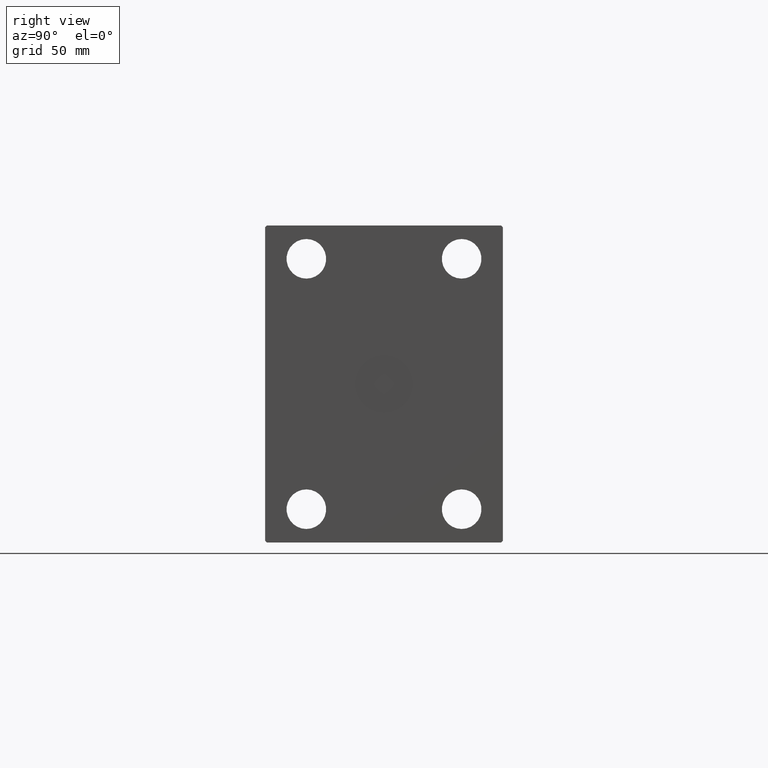
[diagram: clean part render]
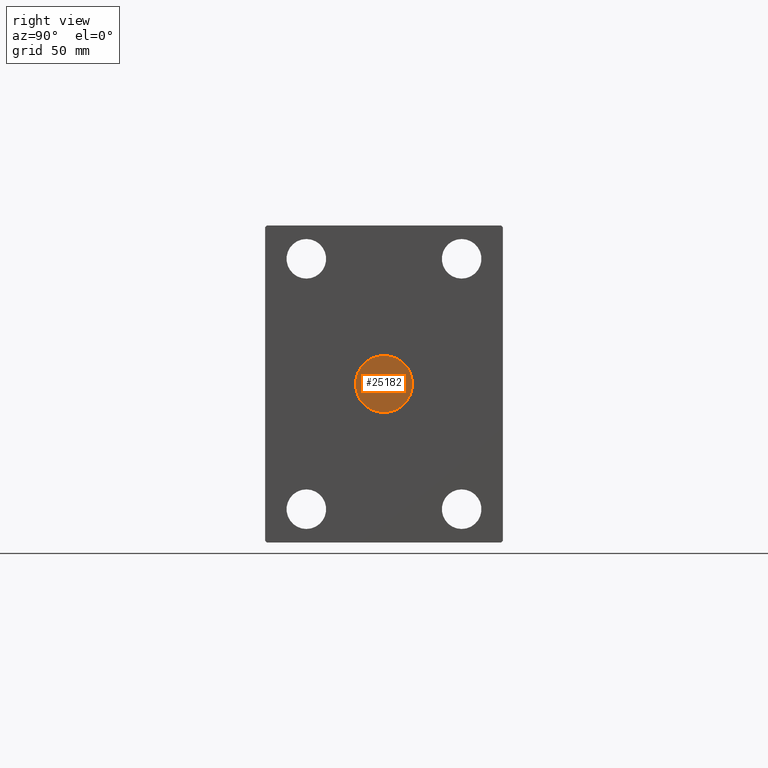
[diagram: same view with one face highlighted and labeled with its STEP entity id]
A machine part, right view. The second image highlights one B-rep face of the part: STEP entity #25182.
In plain terms, the highlighted planar face has unit normal (1, 0, 0).
Its self-contained STEP definition (entity closure, byte-faithful):
#959 = DIRECTION ( 'NONE',  ( 0.000000000000000000, 0.000000000000000000, -1.000000000000000000 ) ) ;
#2338 = VERTEX_POINT ( 'NONE', #19917 ) ;
#4176 = FACE_OUTER_BOUND ( 'NONE', #19878, .T. ) ;
#4647 = CARTESIAN_POINT ( 'NONE',  ( 387.8000000000000114, 2.204364238465235428E-15, 18.00000000000000000 ) ) ;
#5242 = CARTESIAN_POINT ( 'NONE',  ( 387.8000000000000114, 0.000000000000000000, 0.000000000000000000 ) ) ;
#5320 = AXIS2_PLACEMENT_3D ( 'NONE', #37751, #37112, #7659 ) ;
#6497 = ORIENTED_EDGE ( 'NONE', *, *, #19361, .T. ) ;
#7387 = DIRECTION ( 'NONE',  ( 1.000000000000000000, 0.000000000000000000, 0.000000000000000000 ) ) ;
#7659 = DIRECTION ( 'NONE',  ( 0.000000000000000000, 0.000000000000000000, -1.000000000000000000 ) ) ;
#10616 = PLANE ( 'NONE',  #27382 ) ;
#13200 = CARTESIAN_POINT ( 'NONE',  ( 387.8000000000000114, 0.000000000000000000, 0.000000000000000000 ) ) ;
#15000 = AXIS2_PLACEMENT_3D ( 'NONE', #5242, #35325, #34894 ) ;
#19361 = EDGE_CURVE ( 'NONE', #22663, #2338, #36874, .T. ) ;
#19878 = EDGE_LOOP ( 'NONE', ( #20892, #6497 ) ) ;
#19917 = CARTESIAN_POINT ( 'NONE',  ( 387.8000000000000114, 0.000000000000000000, -18.00000000000000000 ) ) ;
#20892 = ORIENTED_EDGE ( 'NONE', *, *, #28030, .T. ) ;
#22554 = CIRCLE ( 'NONE', #15000, 18.00000000000000000 ) ;
#22663 = VERTEX_POINT ( 'NONE', #4647 ) ;
#25182 = ADVANCED_FACE ( 'NONE', ( #4176 ), #10616, .T. ) ;
#27382 = AXIS2_PLACEMENT_3D ( 'NONE', #13200, #7387, #959 ) ;
#28030 = EDGE_CURVE ( 'NONE', #2338, #22663, #22554, .T. ) ;
#34894 = DIRECTION ( 'NONE',  ( 0.000000000000000000, 0.000000000000000000, -1.000000000000000000 ) ) ;
#35325 = DIRECTION ( 'NONE',  ( 1.000000000000000000, 0.000000000000000000, 0.000000000000000000 ) ) ;
#36874 = CIRCLE ( 'NONE', #5320, 18.00000000000000000 ) ;
#37112 = DIRECTION ( 'NONE',  ( 1.000000000000000000, 0.000000000000000000, 0.000000000000000000 ) ) ;
#37751 = CARTESIAN_POINT ( 'NONE',  ( 387.8000000000000114, 0.000000000000000000, 0.000000000000000000 ) ) ;